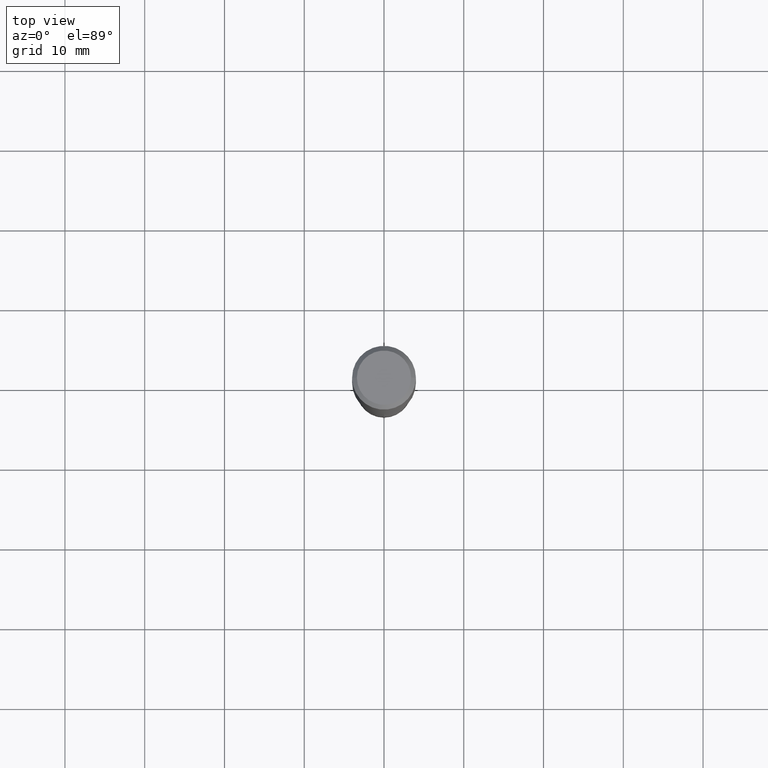
[diagram: clean part render]
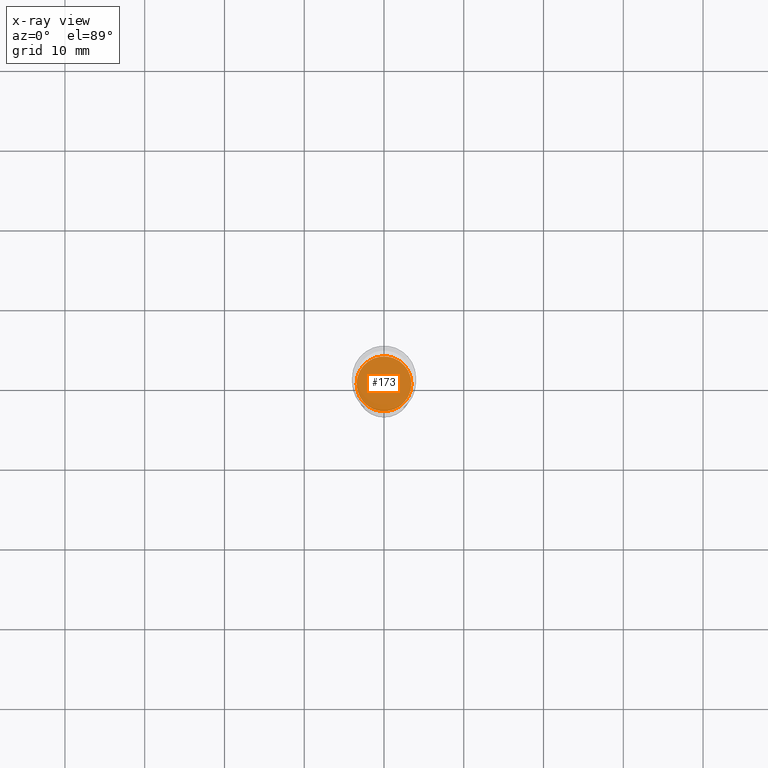
[diagram: x-ray — body ghosted, one internal face saturated and labeled with its STEP entity id]
A machine part, top view, then the same camera in x-ray: the body is ghosted and one INTERNAL B-rep face — a face not visible from any outside direction — is saturated and labeled: STEP entity #173.
In plain terms, the highlighted planar face has unit normal (-0, 0, 1).
Its self-contained STEP definition (entity closure, byte-faithful):
#6 = VERTEX_POINT ( 'NONE', #154 ) ;
#27 = DIRECTION ( 'NONE',  ( -2.445468806185136597E-29, 3.491481338843145583E-15, 1.000000000000000000 ) ) ;
#55 = CARTESIAN_POINT ( 'NONE',  ( 6.814658440794727407E-29, -2.604186862857385143E-15, -1.767800000000000260 ) ) ;
#67 = AXIS2_PLACEMENT_3D ( 'NONE', #55, #324, #209 ) ;
#76 = CIRCLE ( 'NONE', #359, 0.1353499999999999981 ) ;
#94 = CARTESIAN_POINT ( 'NONE',  ( 4.323099755574084481E-29, -6.172240710806911776E-15, -1.767799999999999816 ) ) ;
#115 = DIRECTION ( 'NONE',  ( -2.445468806185136597E-29, 3.491481338843145583E-15, 1.000000000000000000 ) ) ;
#140 = ORIENTED_EDGE ( 'NONE', *, *, #388, .F. ) ;
#151 = ORIENTED_EDGE ( 'NONE', *, *, #287, .F. ) ;
#154 = CARTESIAN_POINT ( 'NONE',  ( -0.1353499999999999981, -5.207871890781506762E-15, -1.767799999999999816 ) ) ;
#159 = CIRCLE ( 'NONE', #443, 0.1353499999999999981 ) ;
#172 = DIRECTION ( 'NONE',  ( 1.000000000000000000, -6.982962677686265133E-15, 0.000000000000000000 ) ) ;
#173 = ADVANCED_FACE ( 'NONE', ( #243 ), #396, .F. ) ;
#209 = DIRECTION ( 'NONE',  ( 1.000000000000000000, -6.982962677686265922E-15, 4.876176775795935793E-29 ) ) ;
#243 = FACE_OUTER_BOUND ( 'NONE', #382, .T. ) ;
#257 = VERTEX_POINT ( 'NONE', #328 ) ;
#287 = EDGE_CURVE ( 'NONE', #6, #257, #159, .T. ) ;
#324 = DIRECTION ( 'NONE',  ( -2.438088387897960049E-29, 3.491481338843145188E-15, 1.000000000000000000 ) ) ;
#328 = CARTESIAN_POINT ( 'NONE',  ( 0.1353499999999999981, -7.117384709231748518E-15, -1.767799999999999816 ) ) ;
#359 = AXIS2_PLACEMENT_3D ( 'NONE', #412, #115, #377 ) ;
#377 = DIRECTION ( 'NONE',  ( 1.000000000000000000, -6.982962677686265133E-15, 0.000000000000000000 ) ) ;
#382 = EDGE_LOOP ( 'NONE', ( #140, #151 ) ) ;
#388 = EDGE_CURVE ( 'NONE', #257, #6, #76, .T. ) ;
#396 = PLANE ( 'NONE',  #67 ) ;
#412 = CARTESIAN_POINT ( 'NONE',  ( 4.323099755574084481E-29, -6.172240710806911776E-15, -1.767799999999999816 ) ) ;
#443 = AXIS2_PLACEMENT_3D ( 'NONE', #94, #27, #172 ) ;